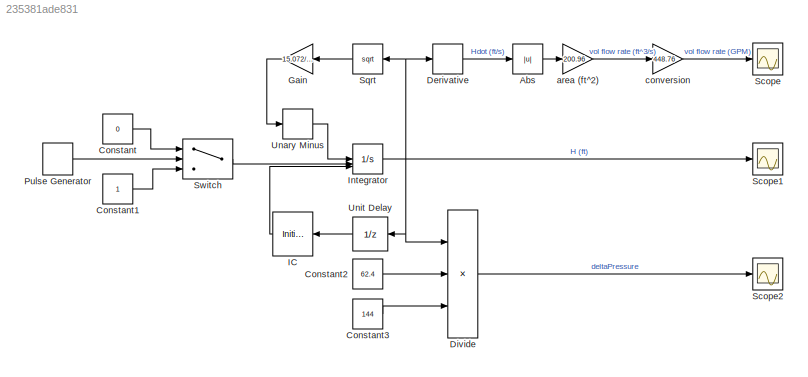
MODEL slx_235381ade831
KIND model
CONFIG AbsTol = auto
CONFIG EnableMultiTasking = off
CONFIG FixedStep = auto
CONFIG MaxStep = auto
CONFIG MinStep = auto
CONFIG RelTol = 1e-3
CONFIG SampleTimeConstraint = Unconstrained
CONFIG SolverName = VariableStepAuto
CONFIG StartTime = 0.0
CONFIG StopTime = 1000
BLOCK [Abs] Abs
  SaturateOnIntegerOverflow = off
BLOCK [Constant] Constant
  Value = 0
BLOCK [Constant] Constant1
BLOCK [Constant] Constant2
  Value = 62.4
BLOCK [Constant] Constant3
  Value = 144
BLOCK [Derivative] Derivative
BLOCK [Product] Divide
  Inputs = **/
BLOCK [Gain] Gain
  Gain = 15.072/200.96
  NameLocation = top
BLOCK [InitialCondition] IC
  NameLocation = top
  Value = 350
BLOCK [Integrator] Integrator
  ExternalReset = level hold
  InitialConditionSource = external
BLOCK [DiscretePulseGenerator] Pulse Generator
  Period = 500
  PhaseDelay = 300
  PulseType = Time based
  PulseWidth = 50
BLOCK [Scope] Scope
  Floating = off
  NumInputPorts = 1
  ScopeSpecificationString = Simulink.scopes.TimeScopeBlockCfg('CurrentConfiguration', extmgr.ConfigurationSet(extmgr.Configuration('Core','General UI',true),extmgr.Configuration('Core','Source UI',true),extmgr.Configuration('Sources','WiredSimulink',true),extmgr.Configuration('Visuals','Time Domain',true,'SerializedDisplays',{struct('MinYLimReal','-17050.10899','MaxYLimReal','153450.98091','YLabelReal','','MinYLimMag','   0....<+1491ch>
BLOCK [Scope] Scope1
  Floating = off
  NumInputPorts = 1
  ScopeSpecificationString = Simulink.scopes.TimeScopeBlockCfg('CurrentConfiguration', extmgr.ConfigurationSet(extmgr.Configuration('Core','General UI',true),extmgr.Configuration('Core','Source UI',true),extmgr.Configuration('Sources','WiredSimulink',true,'DataLoggingVariableName','ScopeData1'),extmgr.Configuration('Visuals','Time Domain',true,'SerializedDisplays',{struct('MinYLimReal','-38.2639','MaxYLimReal','393.14043','YL...<+1462ch>
BLOCK [Scope] Scope2
  Floating = off
  NumInputPorts = 1
  ScopeSpecificationString = Simulink.scopes.TimeScopeBlockCfg('CurrentConfiguration', extmgr.ConfigurationSet(extmgr.Configuration('Core','General UI',true),extmgr.Configuration('Core','Source UI',true),extmgr.Configuration('Sources','WiredSimulink',true,'DataLoggingVariableName','ScopeData2'),extmgr.Configuration('Visuals','Time Domain',true,'SerializedDisplays',{struct('MinYLimReal','-16.58102','MaxYLimReal','170.36085','Y...<+1471ch>
BLOCK [Sqrt] Sqrt
  NameLocation = top
BLOCK [Switch] Switch
  Criteria = u2 ~= 0
  InputSameDT = off
  SaturateOnIntegerOverflow = off
BLOCK [UnaryMinus] Unary Minus
BLOCK [UnitDelay] Unit Delay
  HasFrameUpgradeWarning = on
  NameLocation = top
  SampleTime = -1
BLOCK [Gain] area (ft^2)
  Gain = 200.96
BLOCK [Gain] conversion
  Gain = 448.76
LINE Abs:1 -> area (ft^2):1
LINE Constant1:1 -> Switch:3
LINE Constant2:1 -> Divide:2
LINE Constant3:1 -> Divide:3
LINE Constant:1 -> Switch:1
LINE Derivative:1 -> Abs:1
LINE Divide:1 -> Scope2:1
LINE Gain:1 -> Unary Minus:1
LINE IC:1 -> Integrator:3
NET Integrator:1 -> Derivative:1, Divide:1, Scope1:1, Sqrt:1, Unit Delay:1
LINE Pulse Generator:1 -> Switch:2
LINE Sqrt:1 -> Gain:1
LINE Switch:1 -> Integrator:2
LINE Unary Minus:1 -> Integrator:1
LINE Unit Delay:1 -> IC:1
LINE area (ft^2):1 -> conversion:1
LINE conversion:1 -> Scope:1
note: NET lines group one-source signal fan-out (src -> all destinations, sorted); 1:1 wires keep LINE
